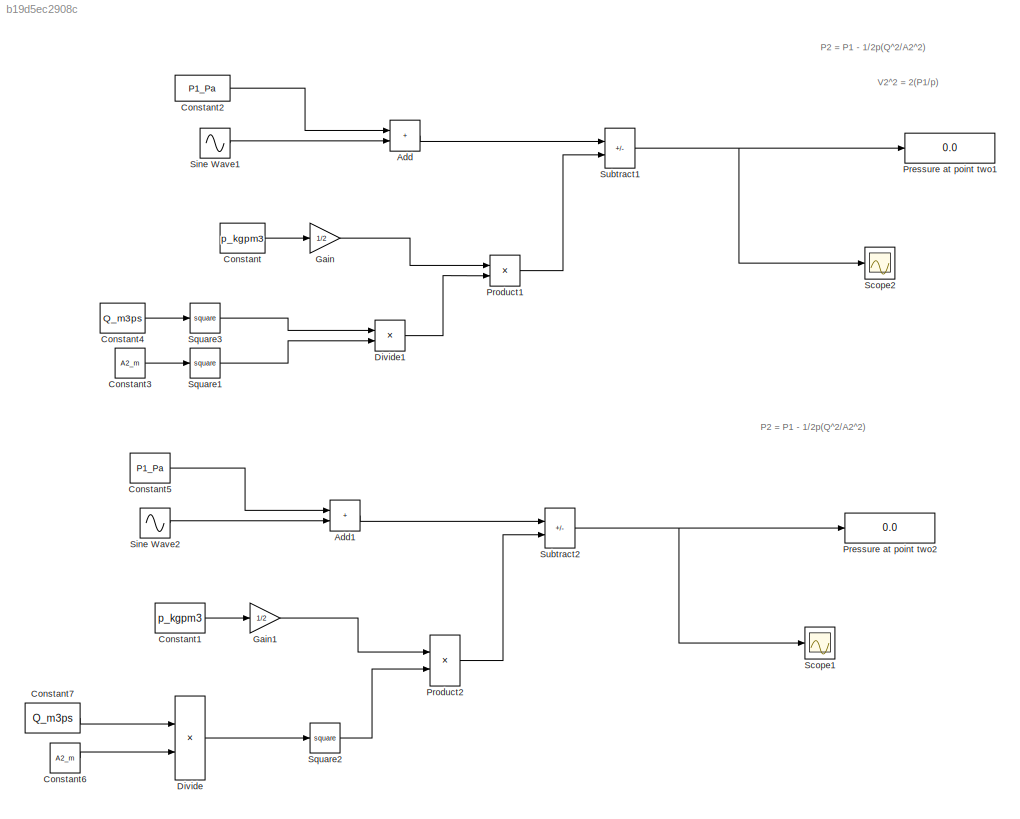
MODEL slx_b19d5ec2908c
KIND model
CONFIG AbsTol = auto
CONFIG EnableMultiTasking = off
CONFIG FixedStep = auto
CONFIG MaxStep = auto
CONFIG MinStep = auto
CONFIG RelTol = 1e-3
CONFIG SampleTimeConstraint = Unconstrained
CONFIG SolverName = VariableStepAuto
CONFIG StartTime = 0.0
CONFIG StopTime = 10.0
BLOCK [Sum] Add
  IconShape = rectangular
BLOCK [Sum] Add1
  IconShape = rectangular
BLOCK [Constant] Constant
  Value = p_kgpm3
BLOCK [Constant] Constant1
  Value = p_kgpm3
BLOCK [Constant] Constant2
  Value = P1_Pa
BLOCK [Constant] Constant3
  Value = A2_m
BLOCK [Constant] Constant4
  Value = Q_m3ps
BLOCK [Constant] Constant5
  Value = P1_Pa
BLOCK [Constant] Constant6
  Value = A2_m
BLOCK [Constant] Constant7
  Value = Q_m3ps
BLOCK [Product] Divide
  Inputs = */
BLOCK [Product] Divide1
  Inputs = */
BLOCK [Gain] Gain
  Gain = 1/2
BLOCK [Gain] Gain1
  Gain = 1/2
BLOCK [Display] Pressure at point two1
  Decimation = 1
  Format = long
BLOCK [Display] Pressure at point two2
  Decimation = 1
  Format = long
BLOCK [Product] Product1
BLOCK [Product] Product2
BLOCK [Scope] Scope1
  Floating = off
  NumInputPorts = 1
  ScopeSpecificationString = Simulink.scopes.TimeScopeBlockCfg('CurrentConfiguration', extmgr.ConfigurationSet(extmgr.Configuration('Core','General UI',true),extmgr.Configuration('Core','Source UI',true),extmgr.Configuration('Sources','WiredSimulink',true,'DataLoggingVariableName','ScopeData1'),extmgr.Configuration('Visuals','Time Domain',true,'SerializedDisplays',{struct('MinYLimReal','2748.75437','MaxYLimReal','2751.24904',...<+1560ch>
BLOCK [Scope] Scope2
  Floating = off
  NumInputPorts = 1
  ScopeSpecificationString = Simulink.scopes.TimeScopeBlockCfg('CurrentConfiguration', extmgr.ConfigurationSet(extmgr.Configuration('Core','General UI',true),extmgr.Configuration('Core','Source UI',true),extmgr.Configuration('Sources','WiredSimulink',true),extmgr.Configuration('Visuals','Time Domain',true,'SerializedDisplays',{struct('MinYLimReal','13878.75437','MaxYLimReal','13881.24904','YLabelReal','','MinYLimMag','13878.7...<+1529ch>
BLOCK [Sin] Sine Wave1
  SampleTime = 0
BLOCK [Sin] Sine Wave2
  SampleTime = 0
BLOCK [Math] Square1
  Operator = square
BLOCK [Math] Square2
  Operator = square
BLOCK [Math] Square3
  Operator = square
BLOCK [Sum] Subtract1
  IconShape = rectangular
  Inputs = +-
BLOCK [Sum] Subtract2
  IconShape = rectangular
  Inputs = +-
ANNOTATION (root): P2 = P1 - 1/2p(Q^2/A2^2)
ANNOTATION (root): V2^2 = 2(P1/p)
LINE Add1:1 -> Subtract2:1
LINE Add:1 -> Subtract1:1
LINE Constant1:1 -> Gain1:1
LINE Constant2:1 -> Add:1
LINE Constant3:1 -> Square1:1
LINE Constant4:1 -> Square3:1
LINE Constant5:1 -> Add1:1
LINE Constant6:1 -> Divide:2
LINE Constant7:1 -> Divide:1
LINE Constant:1 -> Gain:1
LINE Divide1:1 -> Product1:2
LINE Divide:1 -> Square2:1
LINE Gain1:1 -> Product2:1
LINE Gain:1 -> Product1:1
LINE Product1:1 -> Subtract1:2
LINE Product2:1 -> Subtract2:2
LINE Sine Wave1:1 -> Add:2
LINE Sine Wave2:1 -> Add1:2
LINE Square1:1 -> Divide1:2
LINE Square2:1 -> Product2:2
LINE Square3:1 -> Divide1:1
NET Subtract1:1 -> Pressure at point two1:1, Scope2:1
NET Subtract2:1 -> Pressure at point two2:1, Scope1:1
note: NET lines group one-source signal fan-out (src -> all destinations, sorted); 1:1 wires keep LINE
